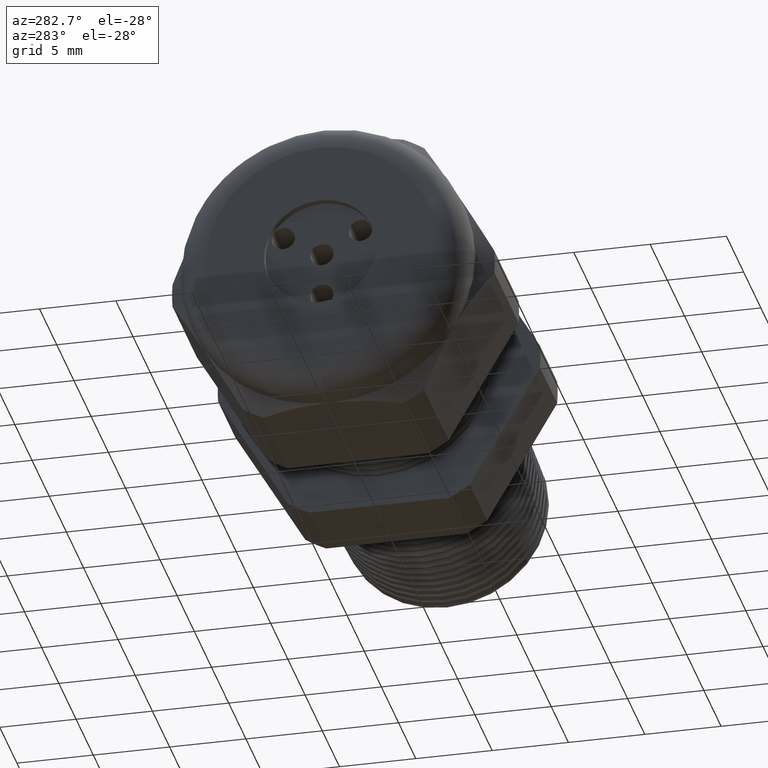
[diagram: clean part render]
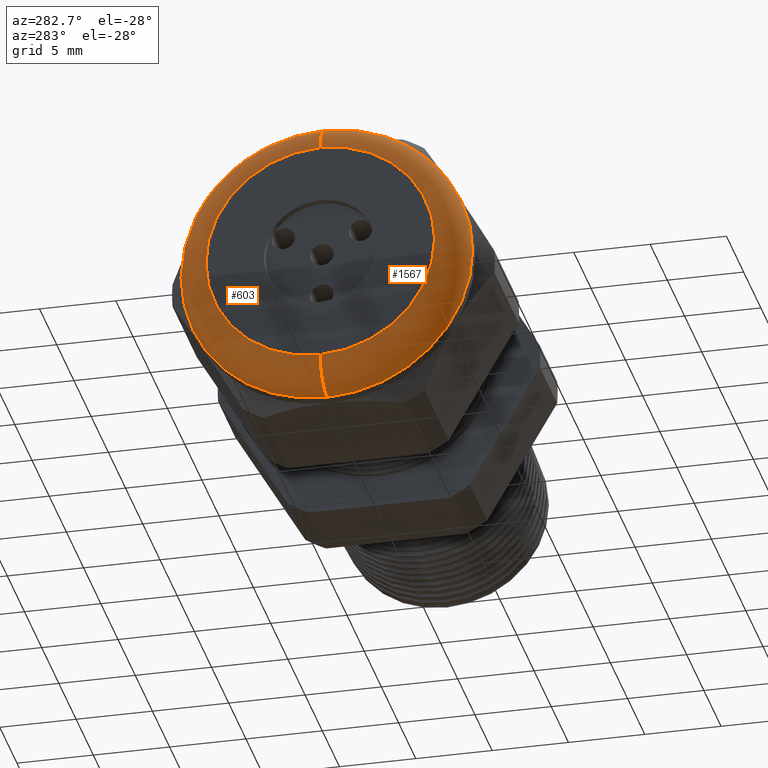
[diagram: same view with one multi-face feature highlighted, each face labeled with its STEP entity id]
A machine part, auxiliary view. The highlighted faces form ONE feature: a constant-radius fillet chain: 2 tangent blend faces with common blend radius 2.032 mm. The faces share edges in the B-rep.
Their STEP definitions:
[1] entity #603 (Torus):
#603 = ADVANCED_FACE ( 'NONE', ( #3087 ), #3144, .T. ) ;
#604 = EDGE_LOOP ( 'NONE', ( #605, #610, #657, #660 ) ) ;
#605 = ORIENTED_EDGE ( 'NONE', *, *, #606, .F. ) ;
#606 = EDGE_CURVE ( 'NONE', #607, #608, #3140, .T. ) ;
#607 = VERTEX_POINT ( 'NONE', #3136 ) ;
#608 = VERTEX_POINT ( 'NONE', #3135 ) ;
#610 = ORIENTED_EDGE ( 'NONE', *, *, #611, .T. ) ;
#611 = EDGE_CURVE ( 'NONE', #607, #656, #3133, .T. ) ;
#656 = VERTEX_POINT ( 'NONE', #3228 ) ;
#657 = ORIENTED_EDGE ( 'NONE', *, *, #658, .F. ) ;
#658 = EDGE_CURVE ( 'NONE', #659, #656, #3227, .T. ) ;
#659 = VERTEX_POINT ( 'NONE', #3222 ) ;
#660 = ORIENTED_EDGE ( 'NONE', *, *, #661, .F. ) ;
#661 = EDGE_CURVE ( 'NONE', #608, #659, #3220, .T. ) ;
#3087 = FACE_OUTER_BOUND ( 'NONE', #604, .T. ) ;
#3129 = DIRECTION ( 'NONE',  ( 0.0000000000000000000, -1.224646799147353500E-016, 1.000000000000000000 ) ) ;
#3130 = DIRECTION ( 'NONE',  ( 0.0000000000000000000, 1.000000000000000000, 1.224646799147353200E-016 ) ) ;
#3131 = CARTESIAN_POINT ( 'NONE',  ( -1.100000000000000100, 3.612708057484693200E-017, -0.2950000000000001000 ) ) ;
#3132 = AXIS2_PLACEMENT_3D ( 'NONE', #3131, #3130, #3129 ) ;
#3133 = CIRCLE ( 'NONE', #3132, 0.08000000000000000200 ) ;
#3135 = CARTESIAN_POINT ( 'NONE',  ( -1.100000000000000100, 4.592425496802576100E-017, 0.3750000000000001100 ) ) ;
#3136 = CARTESIAN_POINT ( 'NONE',  ( -1.100000000000000100, 0.0000000000000000000, -0.3750000000000001100 ) ) ;
#3137 = DIRECTION ( 'NONE',  ( 0.0000000000000000000, 0.0000000000000000000, 1.000000000000000000 ) ) ;
#3138 = DIRECTION ( 'NONE',  ( 1.000000000000000000, 0.0000000000000000000, 0.0000000000000000000 ) ) ;
#3139 = AXIS2_PLACEMENT_3D ( 'NONE', #3145, #3138, #3137 ) ;
#3140 = CIRCLE ( 'NONE', #3139, 0.3750000000000001100 ) ;
#3141 = DIRECTION ( 'NONE',  ( 0.0000000000000000000, 0.0000000000000000000, 1.000000000000000000 ) ) ;
#3142 = DIRECTION ( 'NONE',  ( -1.000000000000000000, 0.0000000000000000000, 0.0000000000000000000 ) ) ;
#3143 = AXIS2_PLACEMENT_3D ( 'NONE', #3146, #3142, #3141 ) ;
#3144 = TOROIDAL_SURFACE ( 'NONE', #3143, 0.2950000000000001000, 0.08000000000000000200 ) ;
#3145 = CARTESIAN_POINT ( 'NONE',  ( -1.100000000000000100, 0.0000000000000000000, 0.0000000000000000000 ) ) ;
#3146 = CARTESIAN_POINT ( 'NONE',  ( -1.100000000000000100, 0.0000000000000000000, 0.0000000000000000000 ) ) ;
#3216 = DIRECTION ( 'NONE',  ( 0.0000000000000000000, 0.0000000000000000000, -1.000000000000000000 ) ) ;
#3217 = DIRECTION ( 'NONE',  ( 0.0000000000000000000, -1.000000000000000000, 0.0000000000000000000 ) ) ;
#3218 = CARTESIAN_POINT ( 'NONE',  ( -1.100000000000000100, 0.0000000000000000000, 0.2950000000000001000 ) ) ;
#3219 = AXIS2_PLACEMENT_3D ( 'NONE', #3218, #3217, #3216 ) ;
#3220 = CIRCLE ( 'NONE', #3219, 0.08000000000000000200 ) ;
#3222 = CARTESIAN_POINT ( 'NONE',  ( -1.179999999999999900, 0.0000000000000000000, 0.2950000000000001000 ) ) ;
#3223 = DIRECTION ( 'NONE',  ( 0.0000000000000000000, 0.0000000000000000000, 1.000000000000000000 ) ) ;
#3224 = DIRECTION ( 'NONE',  ( -1.000000000000000000, 0.0000000000000000000, 0.0000000000000000000 ) ) ;
#3225 = CARTESIAN_POINT ( 'NONE',  ( -1.179999999999999900, 0.0000000000000000000, 0.0000000000000000000 ) ) ;
#3226 = AXIS2_PLACEMENT_3D ( 'NONE', #3225, #3224, #3223 ) ;
#3227 = CIRCLE ( 'NONE', #3226, 0.2950000000000001000 ) ;
#3228 = CARTESIAN_POINT ( 'NONE',  ( -1.179999999999999900, 4.102566777143634000E-017, -0.2950000000000001000 ) ) ;
[2] entity #1567 (Torus):
#607 = VERTEX_POINT ( 'NONE', #3136 ) ;
#608 = VERTEX_POINT ( 'NONE', #3135 ) ;
#611 = EDGE_CURVE ( 'NONE', #607, #656, #3133, .T. ) ;
#656 = VERTEX_POINT ( 'NONE', #3228 ) ;
#659 = VERTEX_POINT ( 'NONE', #3222 ) ;
#661 = EDGE_CURVE ( 'NONE', #608, #659, #3220, .T. ) ;
#1357 = EDGE_CURVE ( 'NONE', #608, #607, #4631, .T. ) ;
#1425 = EDGE_CURVE ( 'NONE', #656, #659, #4755, .T. ) ;
#1567 = ADVANCED_FACE ( 'NONE', ( #4985 ), #4984, .T. ) ;
#1568 = EDGE_LOOP ( 'NONE', ( #1569, #1570, #1571, #1625 ) ) ;
#1569 = ORIENTED_EDGE ( 'NONE', *, *, #611, .F. ) ;
#1570 = ORIENTED_EDGE ( 'NONE', *, *, #1357, .F. ) ;
#1571 = ORIENTED_EDGE ( 'NONE', *, *, #661, .T. ) ;
#1625 = ORIENTED_EDGE ( 'NONE', *, *, #1425, .F. ) ;
#3129 = DIRECTION ( 'NONE',  ( 0.0000000000000000000, -1.224646799147353500E-016, 1.000000000000000000 ) ) ;
#3130 = DIRECTION ( 'NONE',  ( 0.0000000000000000000, 1.000000000000000000, 1.224646799147353200E-016 ) ) ;
#3131 = CARTESIAN_POINT ( 'NONE',  ( -1.100000000000000100, 3.612708057484693200E-017, -0.2950000000000001000 ) ) ;
#3132 = AXIS2_PLACEMENT_3D ( 'NONE', #3131, #3130, #3129 ) ;
#3133 = CIRCLE ( 'NONE', #3132, 0.08000000000000000200 ) ;
#3135 = CARTESIAN_POINT ( 'NONE',  ( -1.100000000000000100, 4.592425496802576100E-017, 0.3750000000000001100 ) ) ;
#3136 = CARTESIAN_POINT ( 'NONE',  ( -1.100000000000000100, 0.0000000000000000000, -0.3750000000000001100 ) ) ;
#3216 = DIRECTION ( 'NONE',  ( 0.0000000000000000000, 0.0000000000000000000, -1.000000000000000000 ) ) ;
#3217 = DIRECTION ( 'NONE',  ( 0.0000000000000000000, -1.000000000000000000, 0.0000000000000000000 ) ) ;
#3218 = CARTESIAN_POINT ( 'NONE',  ( -1.100000000000000100, 0.0000000000000000000, 0.2950000000000001000 ) ) ;
#3219 = AXIS2_PLACEMENT_3D ( 'NONE', #3218, #3217, #3216 ) ;
#3220 = CIRCLE ( 'NONE', #3219, 0.08000000000000000200 ) ;
#3222 = CARTESIAN_POINT ( 'NONE',  ( -1.179999999999999900, 0.0000000000000000000, 0.2950000000000001000 ) ) ;
#3228 = CARTESIAN_POINT ( 'NONE',  ( -1.179999999999999900, 4.102566777143634000E-017, -0.2950000000000001000 ) ) ;
#4627 = DIRECTION ( 'NONE',  ( 0.0000000000000000000, 0.0000000000000000000, 1.000000000000000000 ) ) ;
#4628 = DIRECTION ( 'NONE',  ( 1.000000000000000000, 0.0000000000000000000, 0.0000000000000000000 ) ) ;
#4629 = CARTESIAN_POINT ( 'NONE',  ( -1.100000000000000100, 0.0000000000000000000, 0.0000000000000000000 ) ) ;
#4630 = AXIS2_PLACEMENT_3D ( 'NONE', #4629, #4628, #4627 ) ;
#4631 = CIRCLE ( 'NONE', #4630, 0.3750000000000001100 ) ;
#4752 = DIRECTION ( 'NONE',  ( 0.0000000000000000000, 0.0000000000000000000, 1.000000000000000000 ) ) ;
#4753 = DIRECTION ( 'NONE',  ( -1.000000000000000000, 0.0000000000000000000, 0.0000000000000000000 ) ) ;
#4754 = AXIS2_PLACEMENT_3D ( 'NONE', #4761, #4753, #4752 ) ;
#4755 = CIRCLE ( 'NONE', #4754, 0.2950000000000001000 ) ;
#4761 = CARTESIAN_POINT ( 'NONE',  ( -1.179999999999999900, 0.0000000000000000000, 0.0000000000000000000 ) ) ;
#4980 = DIRECTION ( 'NONE',  ( 0.0000000000000000000, 0.0000000000000000000, 1.000000000000000000 ) ) ;
#4981 = DIRECTION ( 'NONE',  ( -1.000000000000000000, 0.0000000000000000000, 0.0000000000000000000 ) ) ;
#4982 = CARTESIAN_POINT ( 'NONE',  ( -1.100000000000000100, 0.0000000000000000000, 0.0000000000000000000 ) ) ;
#4983 = AXIS2_PLACEMENT_3D ( 'NONE', #4982, #4981, #4980 ) ;
#4984 = TOROIDAL_SURFACE ( 'NONE', #4983, 0.2950000000000001000, 0.08000000000000000200 ) ;
#4985 = FACE_OUTER_BOUND ( 'NONE', #1568, .T. ) ;